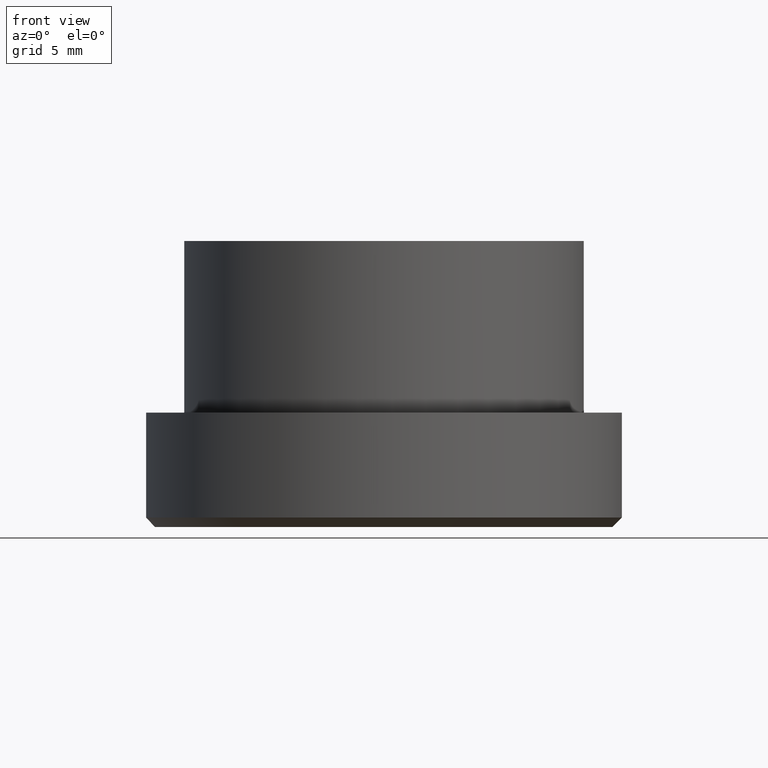
[diagram: clean part render]
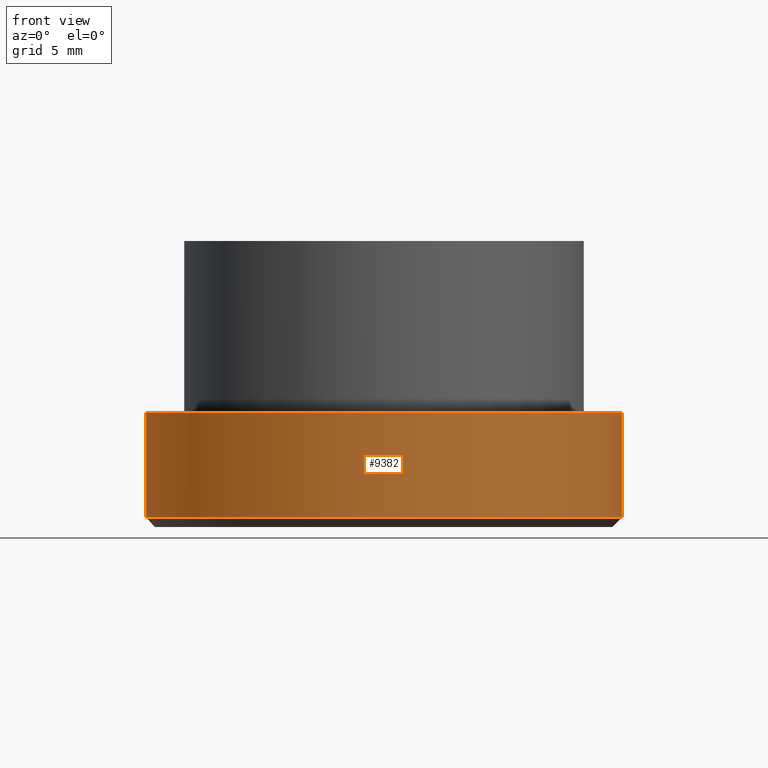
[diagram: same view with one face highlighted and labeled with its STEP entity id]
A machine part, front view. The second image highlights one B-rep face of the part: STEP entity #9382.
In plain terms, the highlighted cylindrical surface (bore or boss wall) has radius 12.5 mm, axis along (-0, -0, 1).
Its self-contained STEP definition (entity closure, byte-faithful):
#42 = CARTESIAN_POINT ( 'NONE',  ( 12.50000000000000000, 0.000000000000000000, -1.499999999999999556 ) ) ;
#960 = CYLINDRICAL_SURFACE ( 'NONE', #8489, 12.50000000000000000 ) ;
#1415 = DIRECTION ( 'NONE',  ( -0.000000000000000000, -0.000000000000000000, 1.000000000000000000 ) ) ;
#2308 = EDGE_CURVE ( 'NONE', #8290, #8290, #4399, .T. ) ;
#2330 = AXIS2_PLACEMENT_3D ( 'NONE', #3332, #10466, #3292 ) ;
#2970 = ORIENTED_EDGE ( 'NONE', *, *, #2308, .F. ) ;
#3092 = CARTESIAN_POINT ( 'NONE',  ( 0.000000000000000000, 0.000000000000000000, -6.999999999999997335 ) ) ;
#3292 = DIRECTION ( 'NONE',  ( 1.000000000000000000, 0.000000000000000000, 0.000000000000000000 ) ) ;
#3332 = CARTESIAN_POINT ( 'NONE',  ( 0.000000000000000000, 0.000000000000000000, -1.499999999999999556 ) ) ;
#4399 = CIRCLE ( 'NONE', #2330, 12.50000000000000000 ) ;
#5238 = CIRCLE ( 'NONE', #12495, 12.50000000000000000 ) ;
#5542 = DIRECTION ( 'NONE',  ( 1.000000000000000000, 0.000000000000000000, 0.000000000000000000 ) ) ;
#5883 = VERTEX_POINT ( 'NONE', #9359 ) ;
#7619 = ORIENTED_EDGE ( 'NONE', *, *, #9575, .T. ) ;
#8290 = VERTEX_POINT ( 'NONE', #42 ) ;
#8489 = AXIS2_PLACEMENT_3D ( 'NONE', #8495, #1415, #5542 ) ;
#8495 = CARTESIAN_POINT ( 'NONE',  ( 0.000000000000000000, 0.000000000000000000, 7.500000000000000000 ) ) ;
#9359 = CARTESIAN_POINT ( 'NONE',  ( 12.50000000000000000, 0.000000000000000000, -6.999999999999997335 ) ) ;
#9382 = ADVANCED_FACE ( 'NONE', ( #11930, #12881 ), #960, .T. ) ;
#9575 = EDGE_CURVE ( 'NONE', #5883, #5883, #5238, .T. ) ;
#10221 = DIRECTION ( 'NONE',  ( -0.000000000000000000, -0.000000000000000000, 1.000000000000000000 ) ) ;
#10466 = DIRECTION ( 'NONE',  ( -0.000000000000000000, -0.000000000000000000, 1.000000000000000000 ) ) ;
#11237 = DIRECTION ( 'NONE',  ( 1.000000000000000000, 0.000000000000000000, 0.000000000000000000 ) ) ;
#11791 = EDGE_LOOP ( 'NONE', ( #2970 ) ) ;
#11930 = FACE_OUTER_BOUND ( 'NONE', #12465, .T. ) ;
#12465 = EDGE_LOOP ( 'NONE', ( #7619 ) ) ;
#12495 = AXIS2_PLACEMENT_3D ( 'NONE', #3092, #10221, #11237 ) ;
#12881 = FACE_OUTER_BOUND ( 'NONE', #11791, .T. ) ;